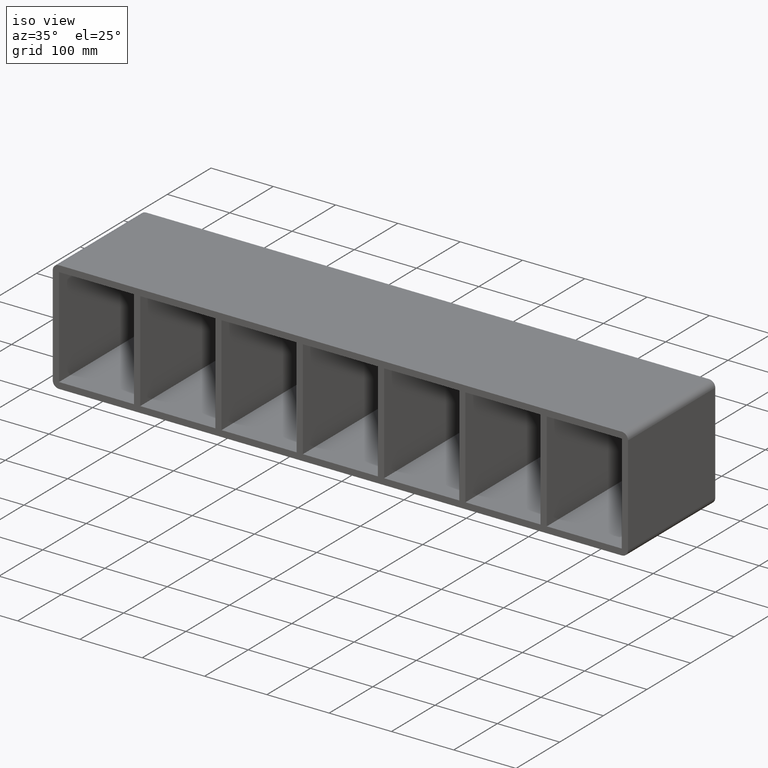
[diagram: clean part render]
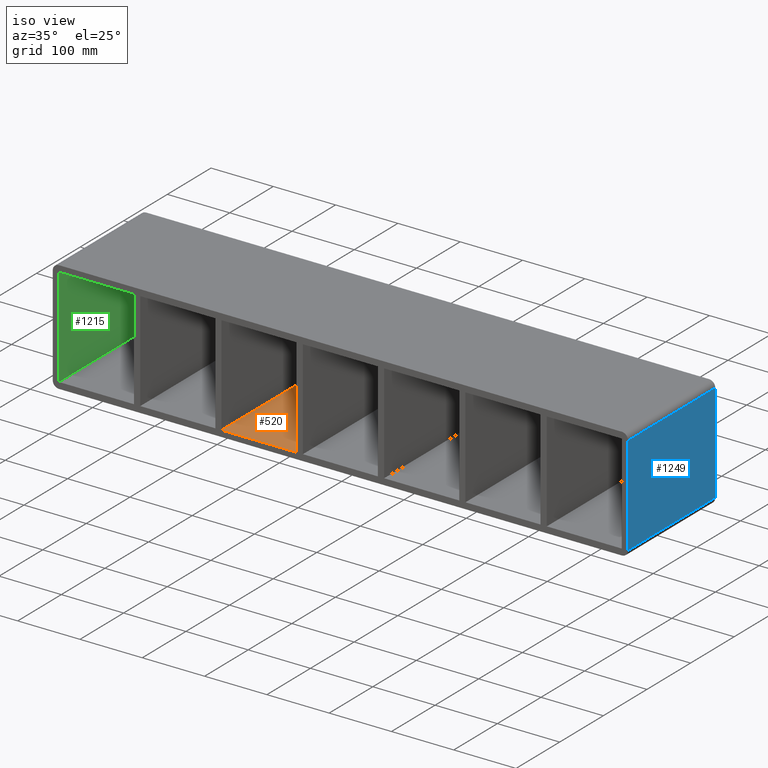
[diagram: same view with three faces highlighted in distinct colors, each labeled with its STEP entity id]
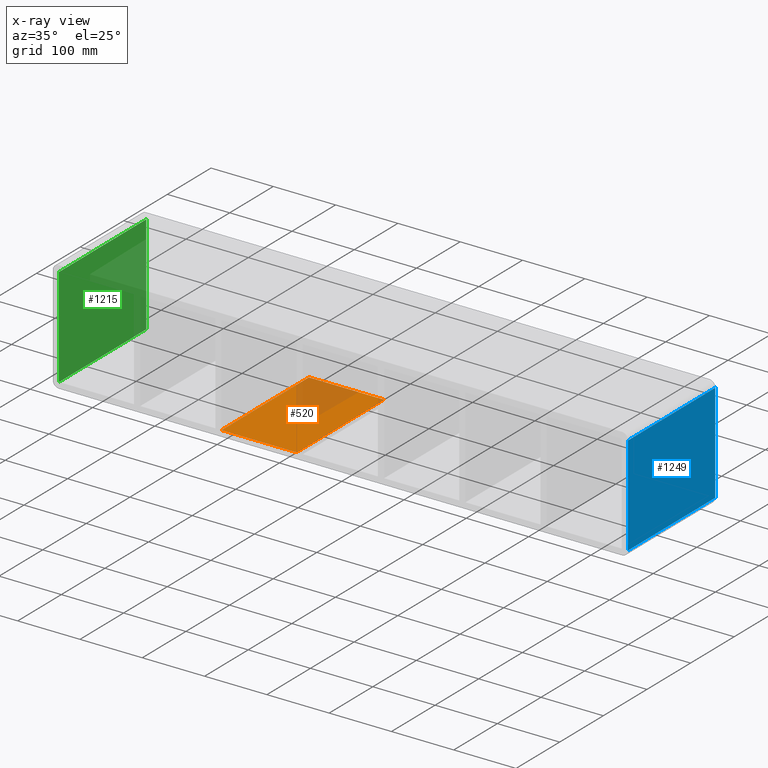
[diagram: x-ray of the same camera — body ghosted, the three highlighted faces saturated]
A machine part, iso view with three faces highlighted in distinct colors.
The next image is the same camera in x-ray (body ghosted, the three faces saturated) — at least one of them is partly hidden behind the body in this view.
Their STEP definitions:

[orange] entity #520 — the highlighted planar face has unit normal (0, 0, -1).
#313=CARTESIAN_POINT('',(-70.250000000001336,-3.0,-79.750000000000014));
#314=VERTEX_POINT('',#313);
#331=CARTESIAN_POINT('',(-70.250000000001336,197.0,-79.750000000000014));
#332=VERTEX_POINT('',#331);
#339=CARTESIAN_POINT('',(-70.250000000001336,-3.0,-79.750000000000014));
#340=DIRECTION('',(0.0,1.0,0.0));
#341=VECTOR('',#340,199.99999999999997);
#342=LINE('',#339,#341);
#343=EDGE_CURVE('',#314,#332,#342,.T.);
#435=CARTESIAN_POINT('',(-190.75,-3.0,-79.749999999971322));
#436=VERTEX_POINT('',#435);
#443=CARTESIAN_POINT('',(-190.75,197.0,-79.749999999971322));
#444=VERTEX_POINT('',#443);
#445=CARTESIAN_POINT('',(-190.74999999999994,196.99999999999997,-79.750000000000014));
#446=DIRECTION('',(0.0,-1.0,0.0));
#447=VECTOR('',#446,199.99999999999997);
#448=LINE('',#445,#447);
#449=EDGE_CURVE('',#444,#436,#448,.T.);
#499=CARTESIAN_POINT('',(451.75000000000006,0.0,-79.750000000000014));
#500=DIRECTION('',(0.0,0.0,-1.0));
#501=DIRECTION('',(-1.0,0.0,0.0));
#502=AXIS2_PLACEMENT_3D('',#499,#500,#501);
#503=PLANE('',#502);
#504=ORIENTED_EDGE('',*,*,#343,.T.);
#505=CARTESIAN_POINT('',(-190.74999999999997,197.0,-79.750000000000014));
#506=DIRECTION('',(1.0,0.0,0.0));
#507=VECTOR('',#506,120.49999999999864);
#508=LINE('',#505,#507);
#509=EDGE_CURVE('',#444,#332,#508,.T.);
#510=ORIENTED_EDGE('',*,*,#509,.F.);
#511=ORIENTED_EDGE('',*,*,#449,.T.);
#512=CARTESIAN_POINT('',(-70.250000000001336,-3.0,-79.750000000000014));
#513=DIRECTION('',(-1.0,0.0,0.0));
#514=VECTOR('',#513,120.49999999999864);
#515=LINE('',#512,#514);
#516=EDGE_CURVE('',#314,#436,#515,.T.);
#517=ORIENTED_EDGE('',*,*,#516,.F.);
#518=EDGE_LOOP('',(#504,#510,#511,#517));
#519=FACE_OUTER_BOUND('',#518,.T.);
#520=ADVANCED_FACE('',(#519),#503,.F.);

[blue] entity #1249 — the highlighted planar face has unit normal (1, 0, 0).
#948=CARTESIAN_POINT('',(461.75000000000006,-3.0,-79.750000000000014));
#949=VERTEX_POINT('',#948);
#957=CARTESIAN_POINT('',(461.75000000000006,-3.0,79.750000000000014));
#958=VERTEX_POINT('',#957);
#959=CARTESIAN_POINT('',(461.75000000000006,-3.0,-79.750000000000014));
#960=DIRECTION('',(0.0,0.0,1.0));
#961=VECTOR('',#960,159.50000000000003);
#962=LINE('',#959,#961);
#963=EDGE_CURVE('',#949,#958,#962,.T.);
#1081=CARTESIAN_POINT('',(461.75000000000006,197.0,-79.750000000000014));
#1082=VERTEX_POINT('',#1081);
#1090=CARTESIAN_POINT('',(461.75000000000006,197.0,-79.750000000000014));
#1091=DIRECTION('',(0.0,-1.0,0.0));
#1092=VECTOR('',#1091,200.0);
#1093=LINE('',#1090,#1092);
#1094=EDGE_CURVE('',#1082,#949,#1093,.T.);
#1107=CARTESIAN_POINT('',(461.75000000000006,197.0,79.750000000000014));
#1108=VERTEX_POINT('',#1107);
#1109=CARTESIAN_POINT('',(461.75000000000006,-3.0,79.750000000000014));
#1110=DIRECTION('',(0.0,1.0,0.0));
#1111=VECTOR('',#1110,200.0);
#1112=LINE('',#1109,#1111);
#1113=EDGE_CURVE('',#958,#1108,#1112,.T.);
#1233=CARTESIAN_POINT('',(461.75000000000006,0.0,89.750000000000014));
#1234=DIRECTION('',(1.0,0.0,0.0));
#1235=DIRECTION('',(0.0,0.0,-1.0));
#1236=AXIS2_PLACEMENT_3D('',#1233,#1234,#1235);
#1237=PLANE('',#1236);
#1238=ORIENTED_EDGE('',*,*,#1094,.F.);
#1239=CARTESIAN_POINT('',(461.75000000000006,197.0,79.750000000000014));
#1240=DIRECTION('',(0.0,0.0,-1.0));
#1241=VECTOR('',#1240,159.50000000000003);
#1242=LINE('',#1239,#1241);
#1243=EDGE_CURVE('',#1108,#1082,#1242,.T.);
#1244=ORIENTED_EDGE('',*,*,#1243,.F.);
#1245=ORIENTED_EDGE('',*,*,#1113,.F.);
#1246=ORIENTED_EDGE('',*,*,#963,.F.);
#1247=EDGE_LOOP('',(#1238,#1244,#1245,#1246));
#1248=FACE_OUTER_BOUND('',#1247,.T.);
#1249=ADVANCED_FACE('',(#1248),#1237,.T.);

[green] entity #1215 — the highlighted planar face has unit normal (-1, 0, 0).
#836=CARTESIAN_POINT('',(-451.75000000000006,197.0,-79.750000000000014));
#837=VERTEX_POINT('',#836);
#844=CARTESIAN_POINT('',(-451.75000000000006,-3.0,-79.750000000000014));
#845=VERTEX_POINT('',#844);
#846=CARTESIAN_POINT('',(-451.75000000000006,-3.0,-79.750000000000014));
#847=DIRECTION('',(0.0,1.0,0.0));
#848=VECTOR('',#847,200.0);
#849=LINE('',#846,#848);
#850=EDGE_CURVE('',#845,#837,#849,.T.);
#867=CARTESIAN_POINT('',(-451.75000000000006,-3.0,79.750000000000014));
#868=VERTEX_POINT('',#867);
#875=CARTESIAN_POINT('',(-451.75000000000006,197.0,79.750000000000014));
#876=VERTEX_POINT('',#875);
#877=CARTESIAN_POINT('',(-451.75000000000006,-3.0,79.750000000000014));
#878=DIRECTION('',(0.0,1.0,0.0));
#879=VECTOR('',#878,200.0);
#880=LINE('',#877,#879);
#881=EDGE_CURVE('',#868,#876,#880,.T.);
#1030=CARTESIAN_POINT('',(-451.75000000000006,-3.0,-79.750000000000014));
#1031=DIRECTION('',(0.0,0.0,1.0));
#1032=VECTOR('',#1031,159.50000000000006);
#1033=LINE('',#1030,#1032);
#1034=EDGE_CURVE('',#845,#868,#1033,.T.);
#1199=CARTESIAN_POINT('',(-451.75000000000006,0.0,-79.750000000000014));
#1200=DIRECTION('',(-1.0,0.0,0.0));
#1201=DIRECTION('',(0.0,0.0,1.0));
#1202=AXIS2_PLACEMENT_3D('',#1199,#1200,#1201);
#1203=PLANE('',#1202);
#1204=ORIENTED_EDGE('',*,*,#881,.F.);
#1205=ORIENTED_EDGE('',*,*,#1034,.F.);
#1206=ORIENTED_EDGE('',*,*,#850,.T.);
#1207=CARTESIAN_POINT('',(-451.75000000000006,197.0,79.750000000000028));
#1208=DIRECTION('',(0.0,0.0,-1.0));
#1209=VECTOR('',#1208,159.50000000000006);
#1210=LINE('',#1207,#1209);
#1211=EDGE_CURVE('',#876,#837,#1210,.T.);
#1212=ORIENTED_EDGE('',*,*,#1211,.F.);
#1213=EDGE_LOOP('',(#1204,#1205,#1206,#1212));
#1214=FACE_OUTER_BOUND('',#1213,.T.);
#1215=ADVANCED_FACE('',(#1214),#1203,.F.);